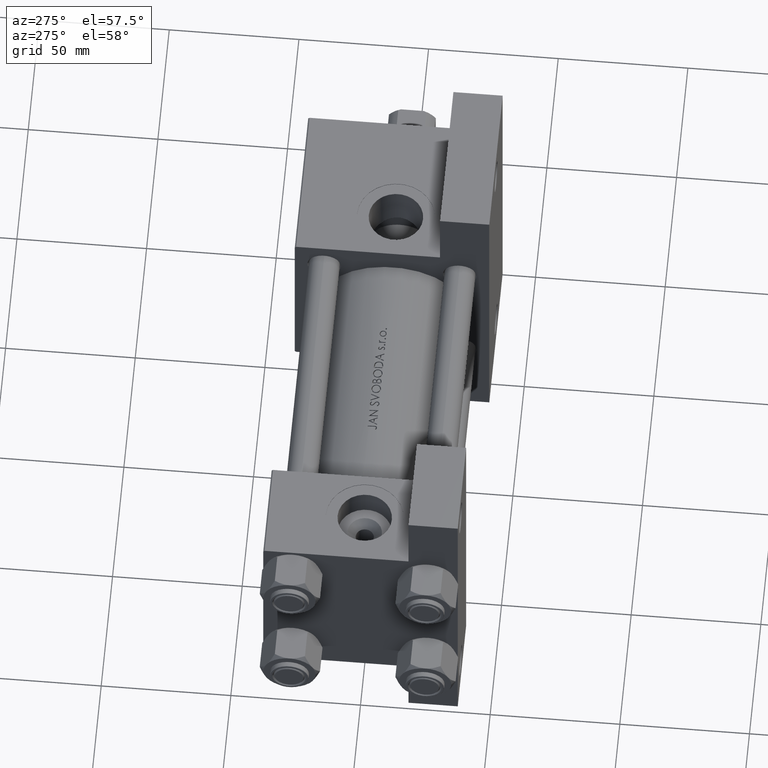
[diagram: clean part render]
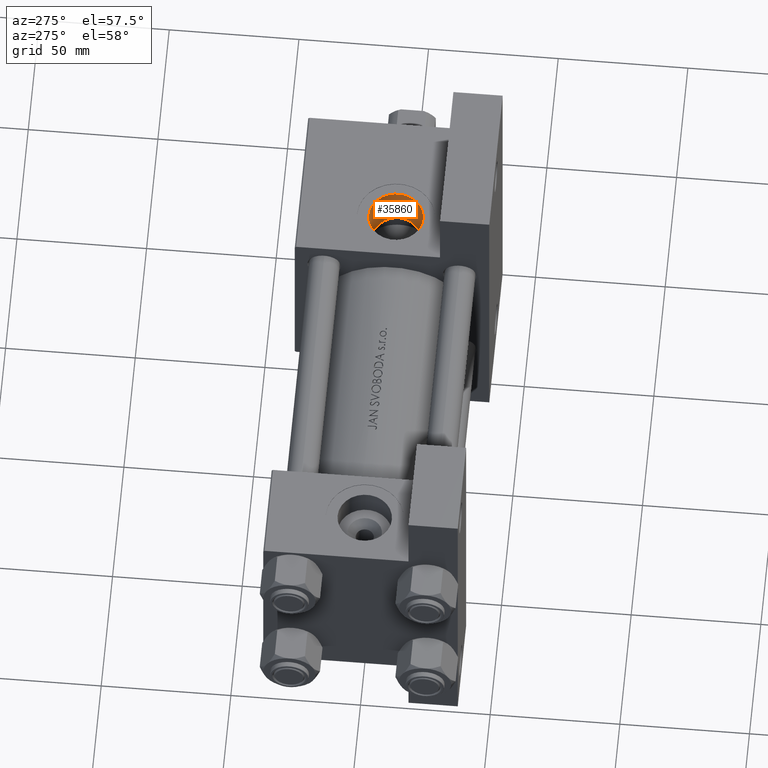
[diagram: same view with one face highlighted and labeled with its STEP entity id]
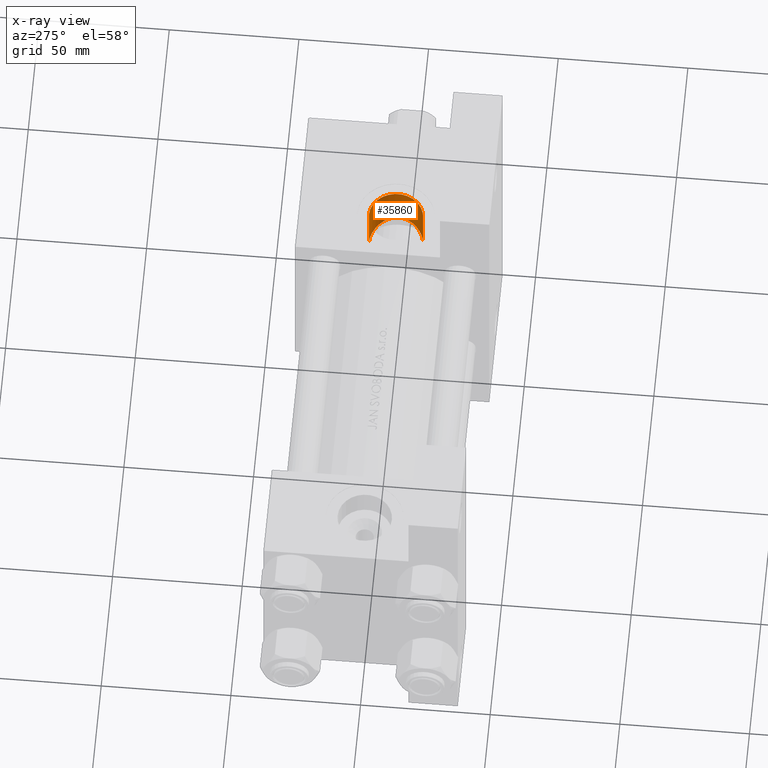
[diagram: x-ray of the same camera — body ghosted, the highlighted face saturated]
A machine part, auxiliary view. The second image highlights one B-rep face of the part: STEP entity #35860.
The next image is the same camera in x-ray: the body ghosted, the highlighted face saturated — about 0% of this face is hidden behind the body in this view.
In plain terms, the highlighted cylindrical surface (edge-blend (fillet) strip) has radius 10.48 mm, axis along (-0, -0, 1).
Its self-contained STEP definition (entity closure, byte-faithful):
#95 = VERTEX_POINT ( 'NONE', #43901 ) ;
#371 = CYLINDRICAL_SURFACE ( 'NONE', #1280, 10.47999999999998622 ) ;
#401 = CARTESIAN_POINT ( 'NONE',  ( 162.3953719826939164, -18.50579674927558571, 8.329556230503516900 ) ) ;
#878 = CARTESIAN_POINT ( 'NONE',  ( 165.9485359727863454, -20.30891902702526153, -3.366903607565236989 ) ) ;
#1130 = CARTESIAN_POINT ( 'NONE',  ( 165.0783182432221849, -19.94519646484593167, -5.247152792081113404 ) ) ;
#1280 = AXIS2_PLACEMENT_3D ( 'NONE', #11567, #41702, #48947 ) ;
#1374 = CARTESIAN_POINT ( 'NONE',  ( 166.4669051482524367, -20.50255402113294068, -0.6300211231001662249 ) ) ;
#1612 = CARTESIAN_POINT ( 'NONE',  ( 158.7750123670570872, -18.09812027575558702, -10.12979723076933425 ) ) ;
#2527 = EDGE_CURVE ( 'NONE', #95, #2688, #23946, .T. ) ;
#2688 = VERTEX_POINT ( 'NONE', #45348 ) ;
#4137 = CARTESIAN_POINT ( 'NONE',  ( 160.6848851208463600, -17.95378683072778259, 9.399761861338273405 ) ) ;
#4386 = CARTESIAN_POINT ( 'NONE',  ( 161.2787600379286062, -18.12953982762253347, 9.078379935655647159 ) ) ;
#4627 = CARTESIAN_POINT ( 'NONE',  ( 164.2943842801269909, -19.29805340160766747, 6.441284550439725365 ) ) ;
#4856 = CARTESIAN_POINT ( 'NONE',  ( 163.8913372837818940, -19.47582360453931116, -6.904560610471913940 ) ) ;
#4982 = EDGE_CURVE ( 'NONE', #15214, #95, #17944, .T. ) ;
#5108 = CARTESIAN_POINT ( 'NONE',  ( 164.8632463434474857, -19.57285682509593272, 5.602446212762891342 ) ) ;
#6016 = DIRECTION ( 'NONE',  ( 0.000000000000000000, 0.000000000000000000, -1.000000000000000000 ) ) ;
#6729 = CARTESIAN_POINT ( 'NONE',  ( 155.9999999999999716, -17.31154528053461306, 10.47999999999999154 ) ) ;
#6952 = CARTESIAN_POINT ( 'NONE',  ( 155.9999999999999716, -17.90669148670408362, -10.47999999999998089 ) ) ;
#7857 = CARTESIAN_POINT ( 'NONE',  ( 159.4291236246858432, -18.20648317701849095, -9.926633415679276595 ) ) ;
#8096 = CARTESIAN_POINT ( 'NONE',  ( 157.7410054315663501, -17.39963274831551132, 10.34017078318249361 ) ) ;
#8340 = CARTESIAN_POINT ( 'NONE',  ( 166.1488622720015087, -20.39261420473474473, -2.705221023230776289 ) ) ;
#8583 = CARTESIAN_POINT ( 'NONE',  ( 166.3852102648228026, -20.41012014665353291, 1.448585321857994712 ) ) ;
#8820 = CARTESIAN_POINT ( 'NONE',  ( 162.9208345979153876, -18.70786800614511236, 7.898040897294844598 ) ) ;
#9832 = VECTOR ( 'NONE', #11034, 1000.000000000000000 ) ;
#11010 = ORIENTED_EDGE ( 'NONE', *, *, #4982, .T. ) ;
#11034 = DIRECTION ( 'NONE',  ( -0.000000000000000000, -1.000000000000000000, -8.673617379884036705E-17 ) ) ;
#11567 = CARTESIAN_POINT ( 'NONE',  ( 155.9999999999999716, 37.50100000000000477, 9.974746723040443104E-15 ) ) ;
#11601 = CARTESIAN_POINT ( 'NONE',  ( 166.4583245133796652, -20.46430137750835954, 0.7579182357777466406 ) ) ;
#12584 = CARTESIAN_POINT ( 'NONE',  ( 155.9999999999999716, -17.31154528053461306, 10.47999999999999154 ) ) ;
#15214 = VERTEX_POINT ( 'NONE', #6952 ) ;
#15825 = CARTESIAN_POINT ( 'NONE',  ( 163.8679744497729018, -19.10325731143032968, 6.954996736502839561 ) ) ;
#16062 = CARTESIAN_POINT ( 'NONE',  ( 165.5516556862484947, -20.14238090880650134, -4.326202217588882348 ) ) ;
#17217 = CARTESIAN_POINT ( 'NONE',  ( 155.9999999999999716, -37.29999999999999716, 3.486794186713383443E-15 ) ) ;
#17944 = LINE ( 'NONE', #33133, #31979 ) ;
#19551 = CARTESIAN_POINT ( 'NONE',  ( 165.5136165929027925, -19.90621515629138827, 4.408684660160838042 ) ) ;
#20283 = CARTESIAN_POINT ( 'NONE',  ( 162.4217440813015116, -18.95863385658994815, -8.309672003124298101 ) ) ;
#20487 = EDGE_LOOP ( 'NONE', ( #30498, #43019, #11010, #29417 ) ) ;
#20531 = CARTESIAN_POINT ( 'NONE',  ( 156.3524141148300828, -17.90669148670408362, -10.47999999999997556 ) ) ;
#21012 = CARTESIAN_POINT ( 'NONE',  ( 156.7047145583874794, -17.91665127801143953, -10.46219065497899692 ) ) ;
#21500 = CARTESIAN_POINT ( 'NONE',  ( 157.7534701870718550, -17.98521153983802634, -10.33810977386607100 ) ) ;
#22086 = VERTEX_POINT ( 'NONE', #6729 ) ;
#23045 = CARTESIAN_POINT ( 'NONE',  ( 156.6954312938288751, -17.32248566803110990, 10.46281023584331393 ) ) ;
#23539 = CARTESIAN_POINT ( 'NONE',  ( 166.3507038963578282, -20.46901633175582447, -1.677836523642098010 ) ) ;
#23946 = CIRCLE ( 'NONE', #41452, 10.47999999999998622 ) ;
#23958 = B_SPLINE_CURVE_WITH_KNOTS ( 'NONE', 3,
 ( #12584, #31008, #23045, #38489, #8096, #26795, #39221, #4137, #4386, #401, #8820, #15825, #4627, #5108, #38246, #42947, #19551, #34762, #46207, #27280, #8583, #11601, #42461, #34998, #1374, #42704, #23539, #8340, #878, #16062, #31251, #1130, #46462, #27519, #38973, #4856, #35247, #24027, #20283, #35494, #41986, #7857, #1612, #21500, #36224, #21012, #20531, #39469 ),
 .UNSPECIFIED., .F., .F.,
 ( 4, 2, 2, 2, 2, 2, 2, 2, 2, 2, 2, 2, 2, 2, 2, 2, 2, 2, 2, 2, 2, 2, 2, 4 ),
 ( 0.03337172289375579803, 0.03441233523662728944, 0.03545294757949878778, 0.03753417226524177058, 0.03961539695098476033, 0.04169662163672774313, 0.04377784632247073981, 0.04481845866534223122, 0.04585907100821372262, 0.04794029569395671930, 0.04898090803682821071, 0.05002152037969970211, 0.05106213272257120045, 0.05210274506544269879, 0.05418396975118568160, 0.05522458209405717994, 0.05626519443692867134, 0.05730580677980016968, 0.05834641912267166108, 0.06042764380841469940, 0.06250886849415773772, 0.06459009317990078991, 0.06563070552277235070, 0.06667131786564391149 ),
 .UNSPECIFIED. ) ;
#24027 = CARTESIAN_POINT ( 'NONE',  ( 162.9416544847751140, -19.13207627753017093, -7.880695095096321268 ) ) ;
#26795 = CARTESIAN_POINT ( 'NONE',  ( 158.7588417203788538, -17.52693762274574851, 10.13402779325157077 ) ) ;
#27280 = CARTESIAN_POINT ( 'NONE',  ( 166.3311065042815073, -20.37409322011633606, 1.794586109409245456 ) ) ;
#27519 = CARTESIAN_POINT ( 'NONE',  ( 164.5247630629395985, -19.72096722719661344, -6.105281524917115732 ) ) ;
#27652 = EDGE_CURVE ( 'NONE', #22086, #2688, #29954, .T. ) ;
#29417 = ORIENTED_EDGE ( 'NONE', *, *, #2527, .T. ) ;
#29954 = LINE ( 'NONE', #45157, #9832 ) ;
#30498 = ORIENTED_EDGE ( 'NONE', *, *, #27652, .F. ) ;
#31008 = CARTESIAN_POINT ( 'NONE',  ( 156.3470210746792759, -17.31154528053460595, 10.47999999999999510 ) ) ;
#31251 = CARTESIAN_POINT ( 'NONE',  ( 165.4025389929008441, -20.07976061505709708, -4.641199740976985844 ) ) ;
#31979 = VECTOR ( 'NONE', #47596, 1000.000000000000000 ) ;
#32502 = FACE_OUTER_BOUND ( 'NONE', #20487, .T. ) ;
#33133 = CARTESIAN_POINT ( 'NONE',  ( 155.9999999999999716, 37.50100000000000477, -10.47999999999997556 ) ) ;
#34762 = CARTESIAN_POINT ( 'NONE',  ( 165.9112922687107528, -20.12166452589491428, 3.472274471029884957 ) ) ;
#34998 = CARTESIAN_POINT ( 'NONE',  ( 166.4819445000525207, -20.50178181377810915, -0.2822101851753042179 ) ) ;
#35247 = CARTESIAN_POINT ( 'NONE',  ( 163.6611621740132989, -19.38999619374664363, -7.159076384942104632 ) ) ;
#35494 = CARTESIAN_POINT ( 'NONE',  ( 161.2983228447828310, -18.62849765410346947, -9.067371222007592380 ) ) ;
#35860 = ADVANCED_FACE ( 'NONE', ( #32502 ), #371, .F. ) ;
#36224 = CARTESIAN_POINT ( 'NONE',  ( 157.4044395936603280, -17.95581939429250085, -10.39141979412303840 ) ) ;
#38246 = CARTESIAN_POINT ( 'NONE',  ( 165.0415136392022930, -19.66186875787549226, 5.310054482731721315 ) ) ;
#38489 = CARTESIAN_POINT ( 'NONE',  ( 157.3951252308202697, -17.36667489365846606, 10.39267281819420319 ) ) ;
#38973 = CARTESIAN_POINT ( 'NONE',  ( 164.3225662003737853, -19.64111042044597966, -6.378170050295204341 ) ) ;
#39221 = CARTESIAN_POINT ( 'NONE',  ( 159.4159050215026241, -17.65012615064442869, 9.931528811289364711 ) ) ;
#39469 = CARTESIAN_POINT ( 'NONE',  ( 155.9999999999999716, -17.90669148670408362, -10.47999999999998089 ) ) ;
#41452 = AXIS2_PLACEMENT_3D ( 'NONE', #17217, #47612, #6016 ) ;
#41702 = DIRECTION ( 'NONE',  ( -0.000000000000000000, -1.000000000000000000, -8.673617379884036705E-17 ) ) ;
#41986 = CARTESIAN_POINT ( 'NONE',  ( 160.6885837709134819, -18.47081169218747831, -9.397559365377063045 ) ) ;
#42461 = CARTESIAN_POINT ( 'NONE',  ( 166.4776551375225893, -20.48265569949337461, 0.4117595292702391774 ) ) ;
#42704 = CARTESIAN_POINT ( 'NONE',  ( 166.4015008588858393, -20.48626732390679805, -1.327331865308766901 ) ) ;
#42947 = CARTESIAN_POINT ( 'NONE',  ( 165.3662177968320179, -19.82832408839749760, 4.713768309937338863 ) ) ;
#43019 = ORIENTED_EDGE ( 'NONE', *, *, #48291, .T. ) ;
#43901 = CARTESIAN_POINT ( 'NONE',  ( 155.9999999999999716, -37.29999999999999716, -10.47999999999998266 ) ) ;
#45157 = CARTESIAN_POINT ( 'NONE',  ( 155.9999999999999716, 37.50100000000000477, 10.47999999999999687 ) ) ;
#45348 = CARTESIAN_POINT ( 'NONE',  ( 155.9999999999999716, -37.29999999999999716, 10.47999999999998977 ) ) ;
#46207 = CARTESIAN_POINT ( 'NONE',  ( 166.1175830810126115, -20.24111318549747551, 2.820020607438576743 ) ) ;
#46462 = CARTESIAN_POINT ( 'NONE',  ( 164.9026386617617561, -19.87300753805846654, -5.539771893847126094 ) ) ;
#47596 = DIRECTION ( 'NONE',  ( -0.000000000000000000, -1.000000000000000000, -8.673617379884036705E-17 ) ) ;
#47612 = DIRECTION ( 'NONE',  ( 0.000000000000000000, -1.000000000000000000, -8.673617379884036705E-17 ) ) ;
#48291 = EDGE_CURVE ( 'NONE', #22086, #15214, #23958, .T. ) ;
#48947 = DIRECTION ( 'NONE',  ( 0.000000000000000000, 0.000000000000000000, -1.000000000000000000 ) ) ;